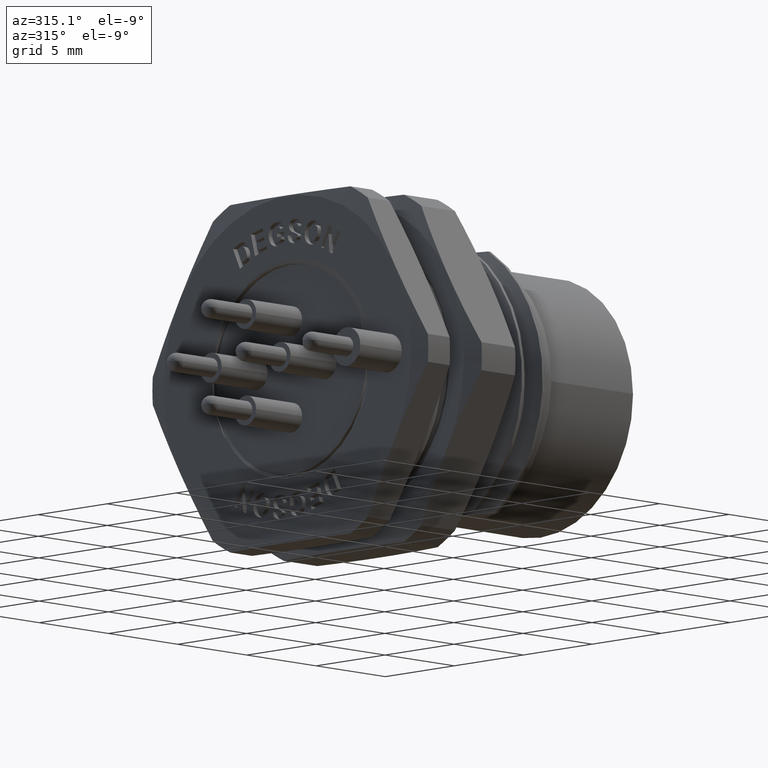
[diagram: clean part render]
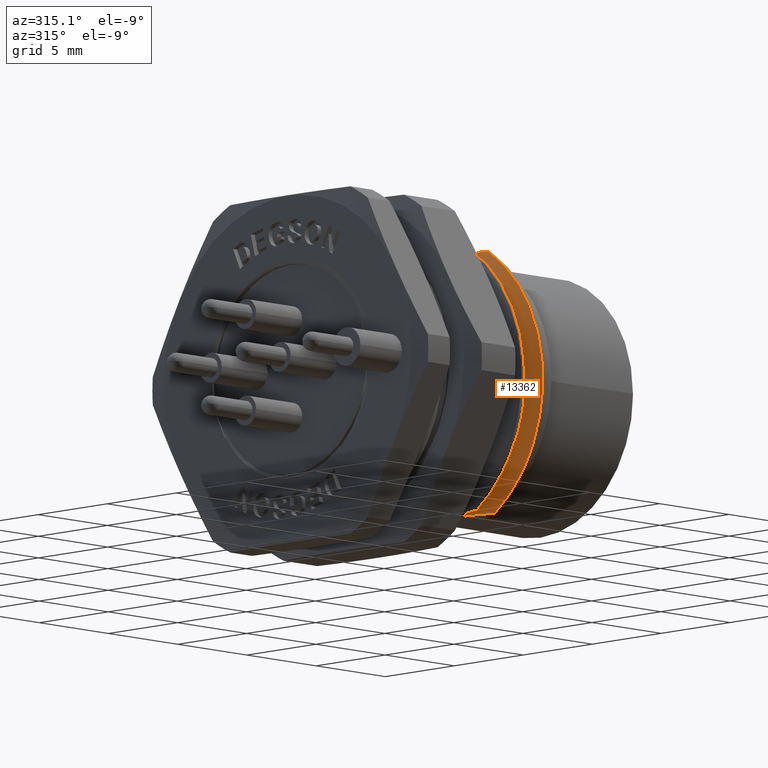
[diagram: same view with one face highlighted and labeled with its STEP entity id]
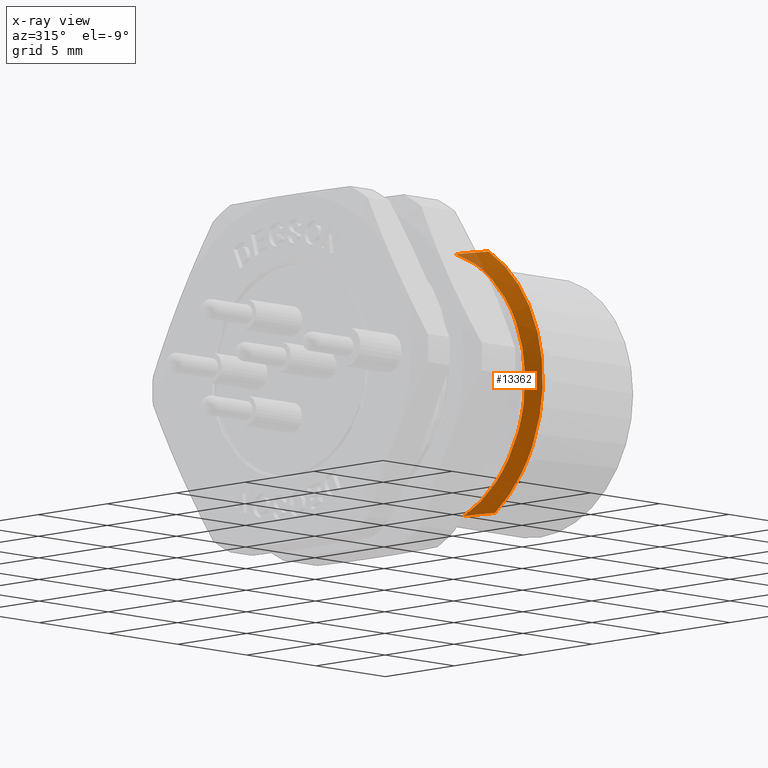
[diagram: x-ray of the same camera — body ghosted, the highlighted face saturated]
A machine part, auxiliary view. The second image highlights one B-rep face of the part: STEP entity #13362.
The next image is the same camera in x-ray: the body ghosted, the highlighted face saturated — about 3% of this face is hidden behind the body in this view.
In plain terms, the highlighted face is a freeform B-spline surface patch.
Its self-contained STEP definition (entity closure, byte-faithful):
#2575=CARTESIAN_POINT('',(7.721214893173E0,-2.470797556493E0,6.749998394602E0));
#2576=CARTESIAN_POINT('',(7.766100009315E0,-2.666138386232E0,6.749998394602E0));
#2577=CARTESIAN_POINT('',(7.864763485461E0,-3.061577420334E0,6.749996796820E0));
#2578=CARTESIAN_POINT('',(8.038948403128E0,-3.669582311089E0,6.750013619226E0));
#2579=CARTESIAN_POINT('',(8.171330720315E0,-4.084169690635E0,6.749970357259E0));
#2580=CARTESIAN_POINT('',(8.241568641521E0,-4.293869995430E0,6.749970357259E0));
#2582=CARTESIAN_POINT('',(8.241568641521E0,-4.293869995430E0,6.749970357259E0));
#2583=CARTESIAN_POINT('',(8.253845298583E0,-4.642313765755E0,6.528355554217E0));
#2584=CARTESIAN_POINT('',(8.278620215493E0,-5.304886041621E0,6.031501014055E0));
#2585=CARTESIAN_POINT('',(8.315519150051E0,-6.170513378638E0,5.140909703830E0));
#2586=CARTESIAN_POINT('',(8.352475889251E0,-6.889805244320E0,4.128674634054E0));
#2587=CARTESIAN_POINT('',(8.389403010978E0,-7.443449638533E0,3.017906975690E0));
#2588=CARTESIAN_POINT('',(8.426322976964E0,-7.818996671563E0,1.835097606311E0));
#2589=CARTESIAN_POINT('',(8.463228222703E0,-8.009295083989E0,
6.094438430769E-1));
#2590=CARTESIAN_POINT('',(8.500119560995E0,-8.006528997349E0,
-6.304558485303E-1));
#2591=CARTESIAN_POINT('',(8.536994684694E0,-7.814889265516E0,
-1.855051191397E0));
#2592=CARTESIAN_POINT('',(8.573853998101E0,-7.436547268901E0,
-3.034496164757E0));
#2593=CARTESIAN_POINT('',(8.610690652037E0,-6.881233394389E0,
-4.141356815761E0));
#2594=CARTESIAN_POINT('',(8.647528247944E0,-6.164111571550E0,
-5.149920086013E0));
#2595=CARTESIAN_POINT('',(8.684273707343E0,-5.299457484835E0,
-6.034448175816E0));
#2596=CARTESIAN_POINT('',(8.708939423881E0,-4.640452409192E0,
-6.529526059762E0));
#2597=CARTESIAN_POINT('',(8.721028286262E0,-4.293831729065E0,
-6.749905481836E0));
#2599=CARTESIAN_POINT('',(8.721028286262E0,-4.293831729065E0,
-6.749905481836E0));
#2600=CARTESIAN_POINT('',(8.661444574967E0,-4.084723018582E0,
-6.749905481836E0));
#2601=CARTESIAN_POINT('',(8.550801830462E0,-3.671012356012E0,
-6.750040079270E0));
#2602=CARTESIAN_POINT('',(8.411314223415E0,-3.062767195543E0,
-6.750001499803E0));
#2603=CARTESIAN_POINT('',(8.336459497187E0,-2.666640098843E0,
-6.749969780947E0));
#2604=CARTESIAN_POINT('',(8.303725961924E0,-2.470789129384E0,
-6.749969780947E0));
#2606=CARTESIAN_POINT('',(7.721214893173E0,-2.470797556493E0,6.749998394602E0));
#2607=CARTESIAN_POINT('',(7.733400120636E0,-2.813884601751E0,6.624413376593E0));
#2608=CARTESIAN_POINT('',(7.757589862164E0,-3.480880427264E0,6.320826115463E0));
#2609=CARTESIAN_POINT('',(7.794025500595E0,-4.400610345787E0,5.718741320621E0));
#2610=CARTESIAN_POINT('',(7.830421265259E0,-5.218215621997E0,4.983932309123E0));
#2611=CARTESIAN_POINT('',(7.866825341855E0,-5.914685647156E0,4.133499406756E0));
#2612=CARTESIAN_POINT('',(7.903229501556E0,-6.473908485506E0,3.187142576049E0));
#2613=CARTESIAN_POINT('',(7.939626062698E0,-6.882912071930E0,2.166767723909E0));
#2614=CARTESIAN_POINT('',(7.976061285719E0,-7.132186191473E0,1.096094932758E0));
#2615=CARTESIAN_POINT('',(8.000255243060E0,-7.187981971288E0,
3.653632474873E-1));
#2616=CARTESIAN_POINT('',(8.012490701091E0,-7.187981971288E0,
1.494122813235E-6));
#2618=CARTESIAN_POINT('',(8.012490701091E0,-7.187981971288E0,
1.494122813235E-6));
#2619=CARTESIAN_POINT('',(8.024725697164E0,-7.187981971288E0,
-3.653464647651E-1));
#2620=CARTESIAN_POINT('',(8.048775122637E0,-7.132190798852E0,
-1.096058113249E0));
#2621=CARTESIAN_POINT('',(8.085267534486E0,-6.882928075024E0,
-2.166712703704E0));
#2622=CARTESIAN_POINT('',(8.121647542074E0,-6.473944800579E0,
-3.187066137366E0));
#2623=CARTESIAN_POINT('',(8.158055965797E0,-5.914742289698E0,
-4.133417550675E0));
#2624=CARTESIAN_POINT('',(8.194456854230E0,-5.218282282434E0,
-4.983864613473E0));
#2625=CARTESIAN_POINT('',(8.230861862426E0,-4.400669494808E0,
-5.718693544504E0));
#2626=CARTESIAN_POINT('',(8.267267936322E0,-3.480915630897E0,
-6.320824465450E0));
#2627=CARTESIAN_POINT('',(8.291535102266E0,-2.813887025403E0,
-6.624380791080E0));
#2628=CARTESIAN_POINT('',(8.303725961924E0,-2.470789129384E0,
-6.749969780947E0));
#9446=VERTEX_POINT('',#2606);
#9447=VERTEX_POINT('',#2616);
#9448=VERTEX_POINT('',#2628);
#9500=CARTESIAN_POINT('',(8.241568641521E0,-4.293869995430E0,6.749970357259E0));
#9501=VERTEX_POINT('',#9500);
#9502=CARTESIAN_POINT('',(8.721028286262E0,-4.293831729065E0,
-6.749905481836E0));
#9503=VERTEX_POINT('',#9502);
#13304=CARTESIAN_POINT('',(8.292266719334E0,-2.126600139996E0,
-6.823962894889E0));
#13305=CARTESIAN_POINT('',(8.463971342698E0,-2.215079077548E0,
-7.107879450464E0));
#13306=CARTESIAN_POINT('',(8.635675966063E0,-2.303558015099E0,
-7.391796006038E0));
#13307=CARTESIAN_POINT('',(8.807380589427E0,-2.392036952651E0,
-7.675712561613E0));
#13308=CARTESIAN_POINT('',(8.288383761137E0,-2.237600037467E0,
-6.789368256457E0));
#13309=CARTESIAN_POINT('',(8.460088384502E0,-2.330697216508E0,
-7.071845473815E0));
#13310=CARTESIAN_POINT('',(8.631793007866E0,-2.423794395548E0,
-7.354322691173E0));
#13311=CARTESIAN_POINT('',(8.803497631230E0,-2.516891574589E0,
-7.636799908531E0));
#13312=CARTESIAN_POINT('',(8.272698104924E0,-2.682605026145E0,
-6.638749026535E0));
#13313=CARTESIAN_POINT('',(8.444402728288E0,-2.794217001580E0,
-6.914959607685E0));
#13314=CARTESIAN_POINT('',(8.616107351652E0,-2.905828977015E0,
-7.191170188834E0));
#13315=CARTESIAN_POINT('',(8.787811975017E0,-3.017440952449E0,
-7.467380769983E0));
#13316=CARTESIAN_POINT('',(8.226327470642E0,-3.951261789950E0,
-6.065692390635E0));
#13317=CARTESIAN_POINT('',(8.398032094007E0,-4.115657267308E0,
-6.318060481911E0));
#13318=CARTESIAN_POINT('',(8.569736717371E0,-4.280052744666E0,
-6.570428573187E0));
#13319=CARTESIAN_POINT('',(8.741441340735E0,-4.444448222024E0,
-6.822796664464E0));
#13320=CARTESIAN_POINT('',(8.153154816489E0,-5.669886455856E0,
-4.641491785099E0));
#13321=CARTESIAN_POINT('',(8.324859439854E0,-5.905786717602E0,
-4.834604845743E0));
#13322=CARTESIAN_POINT('',(8.496564063218E0,-6.141686979348E0,
-5.027717906387E0));
#13323=CARTESIAN_POINT('',(8.668268686582E0,-6.377587241094E0,
-5.220830967031E0));
#13324=CARTESIAN_POINT('',(8.061099882286E0,-6.999279748959E0,
-2.168166084065E0));
#13325=CARTESIAN_POINT('',(8.232804505651E0,-7.290490505589E0,
-2.258374406704E0));
#13326=CARTESIAN_POINT('',(8.404509129015E0,-7.581701262219E0,
-2.348582729342E0));
#13327=CARTESIAN_POINT('',(8.576213752379E0,-7.872912018848E0,
-2.438791051981E0));
#13328=CARTESIAN_POINT('',(7.969044948082E0,-7.300828378612E0,
6.235643741112E-1));
#13329=CARTESIAN_POINT('',(8.140749571447E0,-7.604585312527E0,
6.495082797291E-1));
#13330=CARTESIAN_POINT('',(8.312454194811E0,-7.908342246442E0,
6.754521853470E-1));
#13331=CARTESIAN_POINT('',(8.484158818175E0,-8.212099180356E0,
7.013960909648E-1));
#13332=CARTESIAN_POINT('',(7.876990013879E0,-6.530220730893E0,
3.323721702181E0));
#13333=CARTESIAN_POINT('',(8.048694637244E0,-6.801915903568E0,
3.462007861106E0));
#13334=CARTESIAN_POINT('',(8.220399260608E0,-7.073611076243E0,
3.600294020031E0));
#13335=CARTESIAN_POINT('',(8.392103883972E0,-7.345306248918E0,
3.738580178956E0));
#13336=CARTESIAN_POINT('',(7.786693901323E0,-4.833676524665E0,
5.493515840020E0));
#13337=CARTESIAN_POINT('',(7.958398524687E0,-5.034785588530E0,
5.722078058094E0));
#13338=CARTESIAN_POINT('',(8.130103148051E0,-5.235894652394E0,
5.950640276167E0));
#13339=CARTESIAN_POINT('',(8.301807771415E0,-5.437003716258E0,
6.179202494240E0));
#13340=CARTESIAN_POINT('',(7.723199691938E0,-3.168379775170E0,
6.474612230254E0));
#13341=CARTESIAN_POINT('',(7.894904315302E0,-3.300202806209E0,
6.743993765796E0));
#13342=CARTESIAN_POINT('',(8.066608938666E0,-3.432025837248E0,
7.013375301338E0));
#13343=CARTESIAN_POINT('',(8.238313562030E0,-3.563848868287E0,
7.282756836880E0));
#13344=CARTESIAN_POINT('',(7.690390460621E0,-2.237763756011E0,
6.789766688228E0));
#13345=CARTESIAN_POINT('',(7.862095083985E0,-2.330867746693E0,
7.072260482666E0));
#13346=CARTESIAN_POINT('',(8.033799707349E0,-2.423971737375E0,
7.354754277105E0));
#13347=CARTESIAN_POINT('',(8.205504330714E0,-2.517075728057E0,
7.637248071544E0));
#13348=CARTESIAN_POINT('',(7.686507385725E0,-2.126761129313E0,
6.824310098358E0));
#13349=CARTESIAN_POINT('',(7.858212009090E0,-2.215246764955E0,
7.108241099619E0));
#13350=CARTESIAN_POINT('',(8.029916632454E0,-2.303732400596E0,
7.392172100879E0));
#13351=CARTESIAN_POINT('',(8.201621255818E0,-2.392218036237E0,
7.676103102139E0));
#13352=B_SPLINE_SURFACE_WITH_KNOTS('',3,3,((#13304,#13305,#13306,#13307),
(#13308,#13309,#13310,#13311),(#13312,#13313,#13314,#13315),(#13316,#13317,
#13318,#13319),(#13320,#13321,#13322,#13323),(#13324,#13325,#13326,#13327),(
#13328,#13329,#13330,#13331),(#13332,#13333,#13334,#13335),(#13336,#13337,
#13338,#13339),(#13340,#13341,#13342,#13343),(#13344,#13345,#13346,#13347),(
#13348,#13349,#13350,#13351)),.UNSPECIFIED.,.F.,.F.,.F.,(4,1,1,1,1,1,1,1,1,4),
(4,4),(-1.999939893659E-2,0.E0,6.079047319149E-2,2.188352129569E-1,
3.768799527223E-1,5.349246924877E-1,6.929694322532E-1,8.510141720186E-1,1.E0,
1.02E0),(-3.831172824467E-3,1.004210184086E0),.UNSPECIFIED.);
#13353=ORIENTED_EDGE('',*,*,#12128,.T.);
#13354=ORIENTED_EDGE('',*,*,#13299,.T.);
#13355=ORIENTED_EDGE('',*,*,#11823,.T.);
#13357=ORIENTED_EDGE('',*,*,#13356,.F.);
#13359=ORIENTED_EDGE('',*,*,#13358,.F.);
#13360=EDGE_LOOP('',(#13353,#13354,#13355,#13357,#13359));
#13361=FACE_OUTER_BOUND('',#13360,.F.);
#13362=ADVANCED_FACE('',(#13361),#13352,.F.);
#2581=B_SPLINE_CURVE_WITH_KNOTS('',3,(#2575,#2576,#2577,#2578,#2579,#2580),
.UNSPECIFIED.,.F.,.F.,(4,1,1,4),(0.E0,3.333333333333E-1,6.666666666667E-1,1.E0),
.UNSPECIFIED.);
#2598=B_SPLINE_CURVE_WITH_KNOTS('',3,(#2582,#2583,#2584,#2585,#2586,#2587,#2588,
#2589,#2590,#2591,#2592,#2593,#2594,#2595,#2596,#2597),.UNSPECIFIED.,.F.,.F.,(4,
1,1,1,1,1,1,1,1,1,1,1,1,4),(0.E0,7.692307692308E-2,1.538461538462E-1,
2.307692307692E-1,3.076923076923E-1,3.846153846154E-1,4.615384615385E-1,
5.384615384615E-1,6.153846153846E-1,6.923076923077E-1,7.692307692308E-1,
8.461538461538E-1,9.230769230769E-1,1.E0),.UNSPECIFIED.);
#2605=B_SPLINE_CURVE_WITH_KNOTS('',3,(#2599,#2600,#2601,#2602,#2603,#2604),
.UNSPECIFIED.,.F.,.F.,(4,1,1,4),(0.E0,3.333333333333E-1,6.666666666667E-1,1.E0),
.UNSPECIFIED.);
#2617=B_SPLINE_CURVE_WITH_KNOTS('',3,(#2606,#2607,#2608,#2609,#2610,#2611,#2612,
#2613,#2614,#2615,#2616),.UNSPECIFIED.,.F.,.F.,(4,1,1,1,1,1,1,1,4),(0.E0,
1.25E-1,2.5E-1,3.75E-1,5.E-1,6.25E-1,7.5E-1,8.75E-1,1.E0),.UNSPECIFIED.);
#2629=B_SPLINE_CURVE_WITH_KNOTS('',3,(#2618,#2619,#2620,#2621,#2622,#2623,#2624,
#2625,#2626,#2627,#2628),.UNSPECIFIED.,.F.,.F.,(4,1,1,1,1,1,1,1,4),(0.E0,
1.25E-1,2.5E-1,3.75E-1,5.E-1,6.25E-1,7.5E-1,8.75E-1,1.E0),.UNSPECIFIED.);
#11823=EDGE_CURVE('',#9503,#9448,#2605,.T.);
#12128=EDGE_CURVE('',#9446,#9501,#2581,.T.);
#13299=EDGE_CURVE('',#9501,#9503,#2598,.T.);
#13356=EDGE_CURVE('',#9447,#9448,#2629,.T.);
#13358=EDGE_CURVE('',#9446,#9447,#2617,.T.);